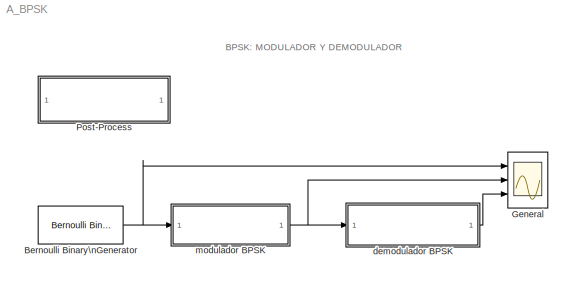
MODEL A_BPSK
KIND model
BLOCK [Reference] Bernoulli Binary\nGenerator  REF=commrandsrc2/Bernoulli Binary\nGenerator
  P = PZb
  Ports = [0, 1]
  SID = 1
  SourceBlock = commrandsrc2/Bernoulli Binary\nGenerator
  SourceType = Bernoulli Binary Generator
  Ts = BSTb
  frameBased = off
  orient = off
  outDataType = double
  sampPerFrame = 1
  seed = 51
BLOCK [Scope] General
  DataFormat = StructureWithTime
  Floating = off
  LimitDataPoints = off
  NumInputPorts = 3
  Ports = [3]
  SID = 3
  SampleTime = 0
  SaveName = ScopeData3
  ShowLegends = off
  YMax = 1.5~1.5~1.5
  YMin = -0.5~-1.5~-0.5
BLOCK [SubSystem] Post-Process
  Ports = []
  RequestExecContextInheritance = off
  SID = 29
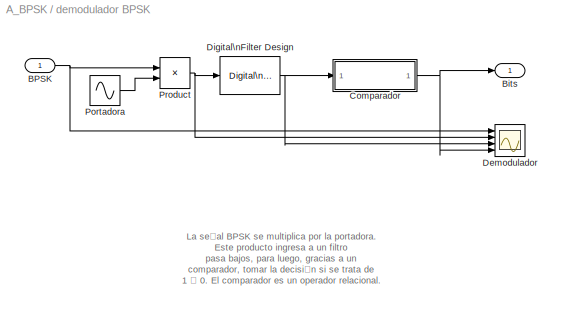
BLOCK [SubSystem] demodulador BPSK
  Ports = [1, 1]
  RequestExecContextInheritance = off
  SID = 5
BLOCK [Inport] demodulador BPSK/BPSK
  IconDisplay = Port number
  SID = 6
BLOCK [Outport] demodulador BPSK/Bits
  IconDisplay = Port number
  SID = 16
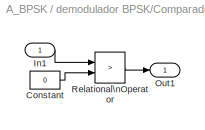
BLOCK [SubSystem] demodulador BPSK/Comparador
  Ports = [1, 1]
  RequestExecContextInheritance = off
  SID = 7
BLOCK [Constant] demodulador BPSK/Comparador/Constant
  SID = 9
  Value = 0
BLOCK [Inport] demodulador BPSK/Comparador/In1
  IconDisplay = Port number
  SID = 8
BLOCK [Outport] demodulador BPSK/Comparador/Out1
  IconDisplay = Port number
  SID = 11
BLOCK [RelationalOperator] demodulador BPSK/Comparador/Relational\nOperator
  InputSameDT = off
  Operator = >
  OutDataTypeStr = boolean
  Ports = [2, 1]
  SID = 10
BLOCK [Scope] demodulador BPSK/Demodulador
  DataFormat = StructureWithTime
  Floating = off
  LimitDataPoints = off
  NumInputPorts = 4
  Ports = [4]
  SID = 15
  SampleTime = 0
  ShowLegends = off
  YMax = 2~1.5~1~2
  YMin = -2~-1.5~-1~-1
BLOCK [Reference] demodulador BPSK/Digital\nFilter Design  REF=dsparch4/Digital\nFilter Design
  Ports = [1, 1]
  SID = 12
  SourceBlock = dsparch4/Digital\nFilter Design
  SourceType = Digital Filter Design
  UserData = DataTag0
  UserDataPersistent = on
  mwdsp_browser_bugfix_var = off
BLOCK [Sin] demodulador BPSK/Portadora
  Amplitude = A3b
  Frequency = 2*10*pi
  Ports = [0, 1]
  SID = 13
  SampleTime = STb
  Samples = SxPb
  SineType = Sample based
BLOCK [Product] demodulador BPSK/Product
  InputSameDT = off
  OutDataTypeStr = Inherit: Inherit via internal rule
  Ports = [2, 1]
  SID = 14
  SaturateOnIntegerOverflow = off
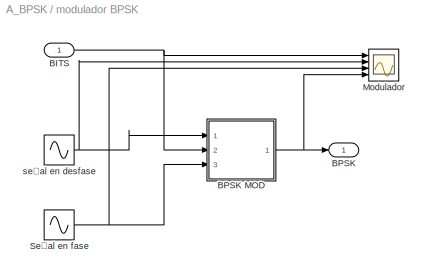
BLOCK [SubSystem] modulador BPSK
  Ports = [1, 1]
  RequestExecContextInheritance = off
  SID = 17
BLOCK [Inport] modulador BPSK/BITS
  IconDisplay = Port number
  SID = 18
BLOCK [Outport] modulador BPSK/BPSK
  IconDisplay = Port number
  SID = 28
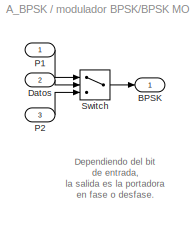
BLOCK [SubSystem] modulador BPSK/BPSK MOD
  Ports = [3, 1]
  RequestExecContextInheritance = off
  SID = 19
BLOCK [Outport] modulador BPSK/BPSK MOD/BPSK
  IconDisplay = Port number
  SID = 24
BLOCK [Inport] modulador BPSK/BPSK MOD/Datos
  IconDisplay = Port number
  Port = 2
  SID = 21
BLOCK [Inport] modulador BPSK/BPSK MOD/P1
  IconDisplay = Port number
  SID = 20
BLOCK [Inport] modulador BPSK/BPSK MOD/P2
  IconDisplay = Port number
  Port = 3
  SID = 22
BLOCK [Switch] modulador BPSK/BPSK MOD/Switch
  InputSameDT = off
  SID = 23
  SaturateOnIntegerOverflow = off
  Threshold = 0.5
BLOCK [Scope] modulador BPSK/Modulador
  DataFormat = StructureWithTime
  Floating = off
  LimitDataPoints = off
  NumInputPorts = 4
  Ports = [4]
  SID = 25
  SampleTime = 0
  SaveName = ScopeData1
  ShowLegends = off
  YMax = 1.5~2~2~2
  YMin = -0.5~-2~-2~-2
BLOCK [Sin] modulador BPSK/Señal en fase
  Amplitude = A1b
  Frequency = 2*10*pi
  Offset = SxPb/2
  Phase = -pi
  Ports = [0, 1]
  SID = 26
  SampleTime = STb
  Samples = SxPb
  SineType = Sample based
BLOCK [Sin] modulador BPSK/señal en desfase
  Amplitude = A1b
  Frequency = 2*10*pi
  Ports = [0, 1]
  SID = 27
  SampleTime = STb
  Samples = SxPb
  SineType = Sample based
ANNOTATION (root): BPSK: MODULADOR Y DEMODULADOR
ANNOTATION demodulador BPSK: La señal BPSK se multiplica por la portadora.\nEste producto ingresa a un filtro\npasa bajos, para luego, gracias a un \ncomparador, tomar la decisión si se trata de\n1 ó 0. El comparador es un operador relacional.
ANNOTATION modulador BPSK/BPSK MOD: Dependiendo del bit\nde entrada,\nla salida es la portadora\nen fase o desfase.
NET Bernoulli Binary\nGenerator:1 -> General:1, modulador BPSK:1
NET demodulador BPSK/BPSK:1 -> demodulador BPSK/Demodulador:1, demodulador BPSK/Product:1
LINE demodulador BPSK/Comparador/Constant:1 -> demodulador BPSK/Comparador/Relational\nOperator:2
LINE demodulador BPSK/Comparador/In1:1 -> demodulador BPSK/Comparador/Relational\nOperator:1
LINE demodulador BPSK/Comparador/Relational\nOperator:1 -> demodulador BPSK/Comparador/Out1:1
NET demodulador BPSK/Comparador:1 -> demodulador BPSK/Bits:1, demodulador BPSK/Demodulador:4
NET demodulador BPSK/Digital\nFilter Design:1 -> demodulador BPSK/Comparador:1, demodulador BPSK/Demodulador:3
LINE demodulador BPSK/Portadora:1 -> demodulador BPSK/Product:2
NET demodulador BPSK/Product:1 -> demodulador BPSK/Demodulador:2, demodulador BPSK/Digital\nFilter Design:1
LINE demodulador BPSK:1 -> General:3
NET modulador BPSK/BITS:1 -> modulador BPSK/BPSK MOD:2, modulador BPSK/Modulador:1
LINE modulador BPSK/BPSK MOD/Datos:1 -> modulador BPSK/BPSK MOD/Switch:2
LINE modulador BPSK/BPSK MOD/P1:1 -> modulador BPSK/BPSK MOD/Switch:1
LINE modulador BPSK/BPSK MOD/P2:1 -> modulador BPSK/BPSK MOD/Switch:3
LINE modulador BPSK/BPSK MOD/Switch:1 -> modulador BPSK/BPSK MOD/BPSK:1
NET modulador BPSK/BPSK MOD:1 -> modulador BPSK/BPSK:1, modulador BPSK/Modulador:4
NET modulador BPSK/Señal en fase:1 -> modulador BPSK/BPSK MOD:3, modulador BPSK/Modulador:3
NET modulador BPSK/señal en desfase:1 -> modulador BPSK/BPSK MOD:1, modulador BPSK/Modulador:2
NET modulador BPSK:1 -> General:2, demodulador BPSK:1
note: NET lines group one-source signal fan-out (src -> all destinations, sorted); 1:1 wires keep LINE
